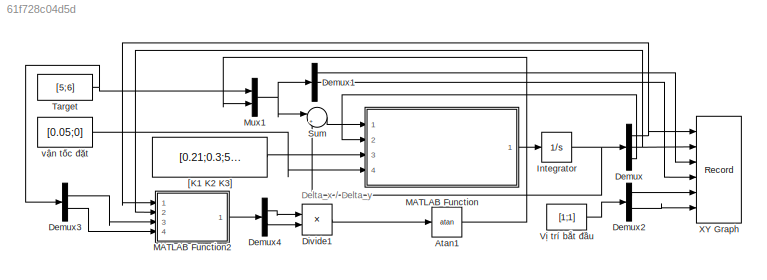
MODEL slx_61f728c04d5d
KIND model
CONFIG AbsTol = auto
CONFIG EnableMultiTasking = off
CONFIG FixedStep = auto
CONFIG MaxStep = auto
CONFIG MinStep = auto
CONFIG RelTol = 1e-3
CONFIG SampleTimeConstraint = Unconstrained
CONFIG SolverName = VariableStepAuto
CONFIG StartTime = 1
CONFIG StopTime = 30
BLOCK [Trigonometry] Atan1
  Operator = atan
  Ports = [1, 1]
BLOCK [Demux] Demux
  Outputs = 3
  Ports = [1, 3]
BLOCK [Demux] Demux1
  Outputs = 3
  Ports = [1, 3]
BLOCK [Demux] Demux2
  Outputs = 2
  Ports = [1, 2]
BLOCK [Demux] Demux3
  Outputs = 2
  Ports = [1, 2]
BLOCK [Demux] Demux4
  Outputs = 2
  Ports = [1, 2]
BLOCK [Product] Divide1
  Inputs = /*
  Ports = [2, 1]
BLOCK [Integrator] Integrator
  InitialCondition = [1;1;pi/6]
  Ports = [1, 1]
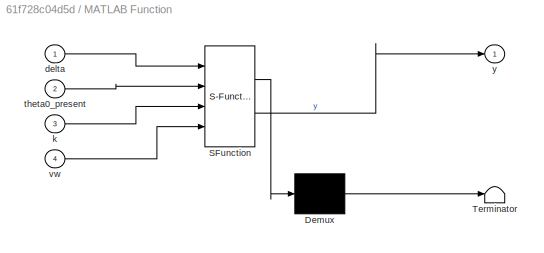
BLOCK [SubSystem] MATLAB Function
  ErrorFcn = Stateflow.Translate.translate
  PermitHierarchicalResolution = ExplicitOnly
  Ports = [4, 1]
  RequestExecContextInheritance = off
  SFBlockType = MATLAB Function
  TreatAsAtomicUnit = on
BLOCK [Demux] MATLAB Function/ Demux 
  Outputs = 1
  Ports = [1, 1]
BLOCK [S-Function] MATLAB Function/ SFunction 
  EnableBusSupport = on
  FunctionName = sf_sfun
  PortCounts = [4 2]
  Ports = [4, 2]
  SFcnIsStateOwnerBlock = off
  SFunctionDeploymentMode = off
  Tag = Stateflow S-Function 2
BLOCK [Terminator] MATLAB Function/ Terminator 
BLOCK [Inport] MATLAB Function/delta
BLOCK [Inport] MATLAB Function/k
  Port = 3
BLOCK [Inport] MATLAB Function/theta0_present
  Port = 2
BLOCK [Inport] MATLAB Function/vw
  Port = 4
BLOCK [Outport] MATLAB Function/y
  VectorParamsAs1DForOutWhenUnconnected = off
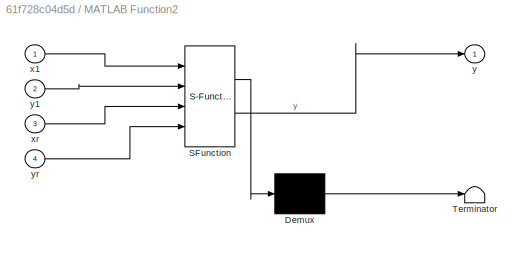
BLOCK [SubSystem] MATLAB Function2
  ErrorFcn = Stateflow.Translate.translate
  PermitHierarchicalResolution = ExplicitOnly
  Ports = [4, 1]
  RequestExecContextInheritance = off
  SFBlockType = MATLAB Function
  TreatAsAtomicUnit = on
BLOCK [Demux] MATLAB Function2/ Demux 
  Outputs = 1
  Ports = [1, 1]
BLOCK [S-Function] MATLAB Function2/ SFunction 
  EnableBusSupport = on
  FunctionName = sf_sfun
  PortCounts = [4 2]
  Ports = [4, 2]
  SFcnIsStateOwnerBlock = off
  SFunctionDeploymentMode = off
  Tag = Stateflow S-Function 3
BLOCK [Terminator] MATLAB Function2/ Terminator 
BLOCK [Inport] MATLAB Function2/x1
BLOCK [Inport] MATLAB Function2/xr
  Port = 3
BLOCK [Outport] MATLAB Function2/y
  VectorParamsAs1DForOutWhenUnconnected = off
BLOCK [Inport] MATLAB Function2/y1
  Port = 2
BLOCK [Inport] MATLAB Function2/yr
  Port = 4
BLOCK [Mux] Mux1
  DisplayOption = bar
  Inputs = 2
  Ports = [2, 1]
BLOCK [Sum] Sum
  Inputs = |+-
  Ports = [2, 1]
BLOCK [Constant] Target
  Value = [5;6]
BLOCK [Constant] Vị trí bắt đầu
  Value = [1;1]
BLOCK [Record] XY Graph
  CompatibilityTag = XY
  FileSettingsInternal = {"entries":[{"content":{"excelSettings":{"content":{},"type":"Streamout.ExcelSettings"}},"type":"Streamout.FileSettingStorage","uuid":"d778f314-aa44-472d-93c3-3ca5c424359a"}],"packageUris":["http://schema.mathworks.com/mf0/streamout_blocks/R2020a"],"version":"1.0"}
  Layout = [1 1]
  Ports = [6]
  SignalsInternal = {"entries":[{"content":{"signals":[{"content":{"blockPath":["Xe_chay_diem_target_nhap_theo_quy_dao_R/XY Graph"],"channel":[],"dimensions":[1],"domain":"Xe_chay_diem_target_nhap_theo_quy_dao_R/XY Graph","lineColor":"#edb120","plots":[1],"port":1,"sid":[""],"signalID":2169,"signalName":"Demux:1"},"type":"RecordBlkView.Signal","uuid":"b1771882-ce94-4be2-857d-a5152cf5ea78"},{"content":{"blockPath":["X...<+1843ch>
  VisualizationBindings = {"xyplotplugin":{"info":[{"series":[{"bindingParametersList":[{"parameter":"X-Axis","signalID":2185,"signalName":"Demux2:1"},{"parameter":"Y-Axis","signalID":2189,"signalName":"Demux2:2"}],"seriesID":57161},{"bindingParametersList":[{"parameter":"X-Axis","signalID":2177,"signalName":"Demux1:1"},{"parameter":"Y-Axis","signalID":2181,"signalName":"Demux1:2"}],"seriesID":5755},{"bindingParametersList...<+191ch>
BLOCK [Constant] [K1 K2 K3]
  Value = [0.21;0.3;5.25]
BLOCK [Constant] vận tốc đặt
  Value = [0.05;0]
ANNOTATION (root): Delta_x / Delta_y
LINE Atan1:1 -> Mux1:2
LINE Demux1:1 -> XY Graph:3
LINE Demux1:2 -> XY Graph:4
LINE Demux2:1 -> XY Graph:5
LINE Demux2:2 -> XY Graph:6
LINE Demux3:1 -> MATLAB Function2:3
LINE Demux3:2 -> MATLAB Function2:4
LINE Demux4:1 -> Divide1:1
LINE Demux4:2 -> Divide1:2
NET Demux:1 -> MATLAB Function2:1, XY Graph:1
NET Demux:2 -> MATLAB Function2:2, XY Graph:2
LINE Demux:3 -> MATLAB Function:2
LINE Divide1:1 -> Atan1:1
NET Integrator:1 -> Demux:1, Sum:2
LINE MATLAB Function2:1 -> Demux4:1
LINE MATLAB Function:1 -> Integrator:1
NET Mux1:1 -> Demux1:1, Sum:1
LINE Sum:1 -> MATLAB Function:1
NET Target:1 -> Demux3:1, Mux1:1
LINE Vị trí bắt đầu:1 -> Demux2:1
LINE [K1 K2 K3]:1 -> MATLAB Function:3
LINE vận tốc đặt:1 -> MATLAB Function:4
note: NET lines group one-source signal fan-out (src -> all destinations, sorted); 1:1 wires keep LINE
CHART MATLAB Function states=1 transitions=1
  STATE_LABEL 'eML_blk_kernel()'
  STATE_LABEL 'SCRIPT:\nfunction y = fcn(delta,theta0_present,k,vw)\n%#codegen\nA=[cos(theta0_present)   sin(theta0_present) 0;\n    -sin(theta0_present) cos(theta0_present) 0;\n    0                    0                    1];\ne=A*delta;\nV_c=[vw(1)*cos(e(3))+k(1)*e(1);\n    vw(2)+k(2)*vw(1)*e(2)+k(3)*vw(1)*sin(e(3))];\nMatrix=[cos(theta0_present) 0;\n        sin(theta0_present) 0;\n        0                   1];\nu=Matr...<+14ch>'
CHART MATLAB Function2 states=1 transitions=1
  STATE_LABEL 'eML_blk_kernel()'
  STATE_LABEL 'SCRIPT:\nfunction y = fcn(x1,y1,xr,yr)\n%#codegen\nx_delta=xr-x1;\ny_delta=yr-y1;\nu=[x_delta;y_delta]\ny = u;'
CHART  states=0 transitions=0
CHART  states=0 transitions=0
